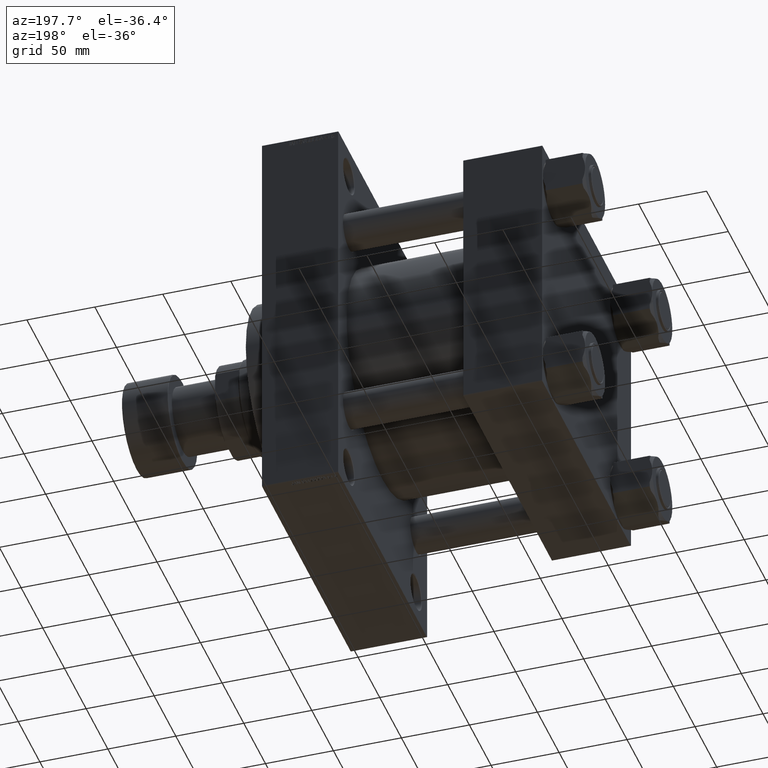
[diagram: clean part render]
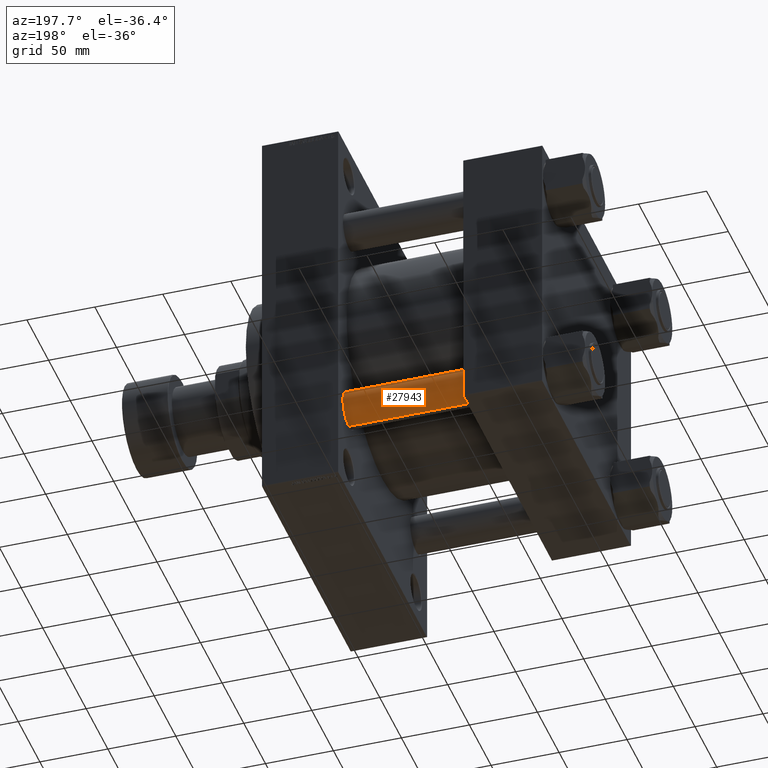
[diagram: same view with one face highlighted and labeled with its STEP entity id]
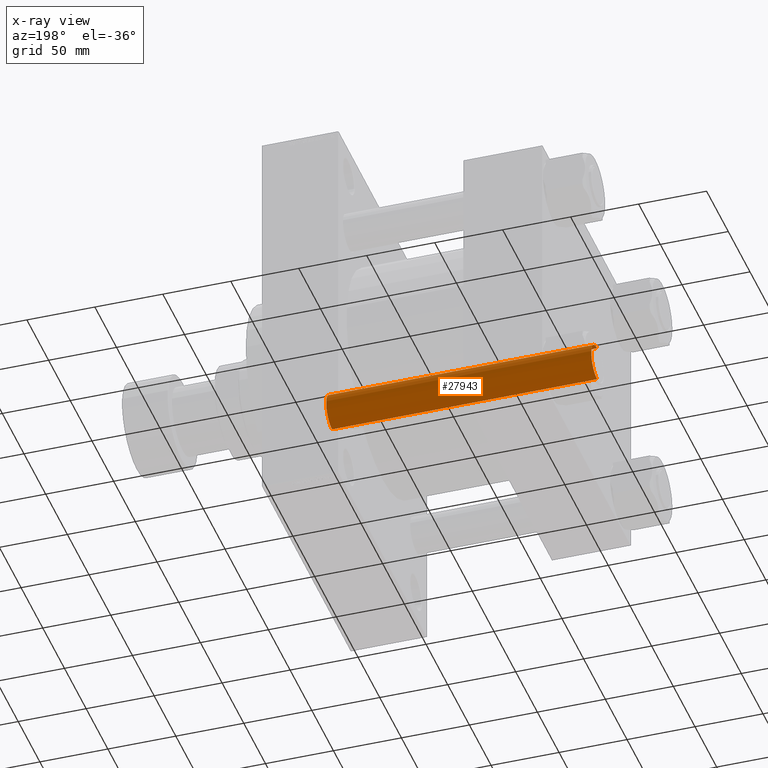
[diagram: x-ray of the same camera — body ghosted, the highlighted face saturated]
A machine part, auxiliary view. The second image highlights one B-rep face of the part: STEP entity #27943.
The next image is the same camera in x-ray: the body ghosted, the highlighted face saturated — about 0% of this face is hidden behind the body in this view.
In plain terms, the highlighted cylindrical surface (edge-blend (fillet) strip) has radius 13.5 mm, axis along (-1, -0, 0).
Its self-contained STEP definition (entity closure, byte-faithful):
#321 = CARTESIAN_POINT ( 'NONE',  ( 0.000000000000000000, 0.000000000000000000, 0.4999999999999726885 ) ) ;
#544 = CARTESIAN_POINT ( 'NONE',  ( 0.000000000000000000, 0.000000000000000000, 195.5000000000000284 ) ) ;
#1791 = LINE ( 'NONE', #38546, #19090 ) ;
#2623 = CARTESIAN_POINT ( 'NONE',  ( -13.50000000000000000, 0.000000000000000000, 196.0000000000000000 ) ) ;
#3226 = ORIENTED_EDGE ( 'NONE', *, *, #30680, .T. ) ;
#4719 = AXIS2_PLACEMENT_3D ( 'NONE', #544, #22182, #15395 ) ;
#5628 = AXIS2_PLACEMENT_3D ( 'NONE', #29936, #44791, #45260 ) ;
#6598 = VERTEX_POINT ( 'NONE', #21968 ) ;
#8236 = EDGE_CURVE ( 'NONE', #19728, #30144, #1791, .T. ) ;
#8624 = DIRECTION ( 'NONE',  ( -0.000000000000000000, -0.000000000000000000, -1.000000000000000000 ) ) ;
#10136 = CARTESIAN_POINT ( 'NONE',  ( 13.50000000000000000, 1.653273178848926867E-15, 0.4999999999999726885 ) ) ;
#15395 = DIRECTION ( 'NONE',  ( 1.000000000000000000, 0.000000000000000000, 0.000000000000000000 ) ) ;
#15405 = ORIENTED_EDGE ( 'NONE', *, *, #8236, .T. ) ;
#15410 = DIRECTION ( 'NONE',  ( -0.000000000000000000, -0.000000000000000000, 1.000000000000000000 ) ) ;
#17475 = LINE ( 'NONE', #2623, #41931 ) ;
#18433 = CIRCLE ( 'NONE', #47989, 13.50000000000000000 ) ;
#18747 = FACE_OUTER_BOUND ( 'NONE', #24096, .T. ) ;
#19090 = VECTOR ( 'NONE', #8624, 1000.000000000000000 ) ;
#19728 = VERTEX_POINT ( 'NONE', #43685 ) ;
#21968 = CARTESIAN_POINT ( 'NONE',  ( -13.50000000000000000, 0.000000000000000000, 0.4999999999999726885 ) ) ;
#22182 = DIRECTION ( 'NONE',  ( 0.000000000000000000, 0.000000000000000000, -1.000000000000000000 ) ) ;
#22628 = CYLINDRICAL_SURFACE ( 'NONE', #5628, 13.50000000000000000 ) ;
#24096 = EDGE_LOOP ( 'NONE', ( #41724, #15405, #3226, #26055 ) ) ;
#25671 = CIRCLE ( 'NONE', #4719, 13.50000000000000000 ) ;
#26055 = ORIENTED_EDGE ( 'NONE', *, *, #39355, .F. ) ;
#27943 = ADVANCED_FACE ( 'NONE', ( #18747 ), #22628, .T. ) ;
#28885 = DIRECTION ( 'NONE',  ( -0.000000000000000000, -0.000000000000000000, -1.000000000000000000 ) ) ;
#29936 = CARTESIAN_POINT ( 'NONE',  ( 0.000000000000000000, 0.000000000000000000, 196.0000000000000000 ) ) ;
#30144 = VERTEX_POINT ( 'NONE', #10136 ) ;
#30680 = EDGE_CURVE ( 'NONE', #30144, #6598, #18433, .T. ) ;
#31811 = CARTESIAN_POINT ( 'NONE',  ( -13.50000000000000000, 0.000000000000000000, 195.5000000000000284 ) ) ;
#35079 = VERTEX_POINT ( 'NONE', #31811 ) ;
#38033 = DIRECTION ( 'NONE',  ( 1.000000000000000000, 0.000000000000000000, 0.000000000000000000 ) ) ;
#38546 = CARTESIAN_POINT ( 'NONE',  ( 13.50000000000000000, 1.653273178848926867E-15, 196.0000000000000000 ) ) ;
#39355 = EDGE_CURVE ( 'NONE', #35079, #6598, #17475, .T. ) ;
#41724 = ORIENTED_EDGE ( 'NONE', *, *, #43091, .T. ) ;
#41931 = VECTOR ( 'NONE', #28885, 1000.000000000000000 ) ;
#43091 = EDGE_CURVE ( 'NONE', #35079, #19728, #25671, .T. ) ;
#43685 = CARTESIAN_POINT ( 'NONE',  ( 13.50000000000000000, 1.653273178848926867E-15, 195.5000000000000284 ) ) ;
#44791 = DIRECTION ( 'NONE',  ( -0.000000000000000000, -0.000000000000000000, -1.000000000000000000 ) ) ;
#45260 = DIRECTION ( 'NONE',  ( -1.000000000000000000, 0.000000000000000000, 0.000000000000000000 ) ) ;
#47989 = AXIS2_PLACEMENT_3D ( 'NONE', #321, #15410, #38033 ) ;